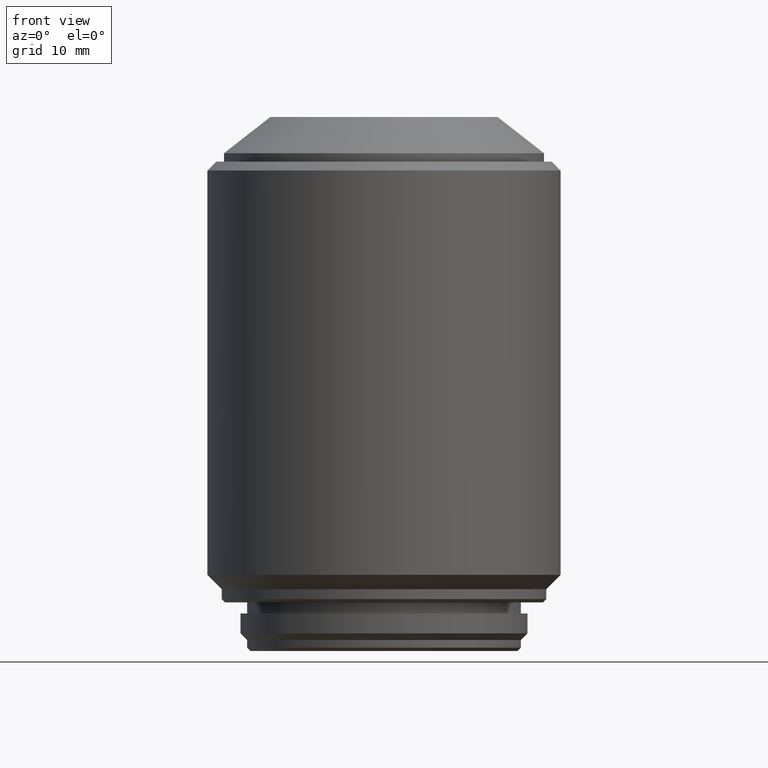
[diagram: clean part render]
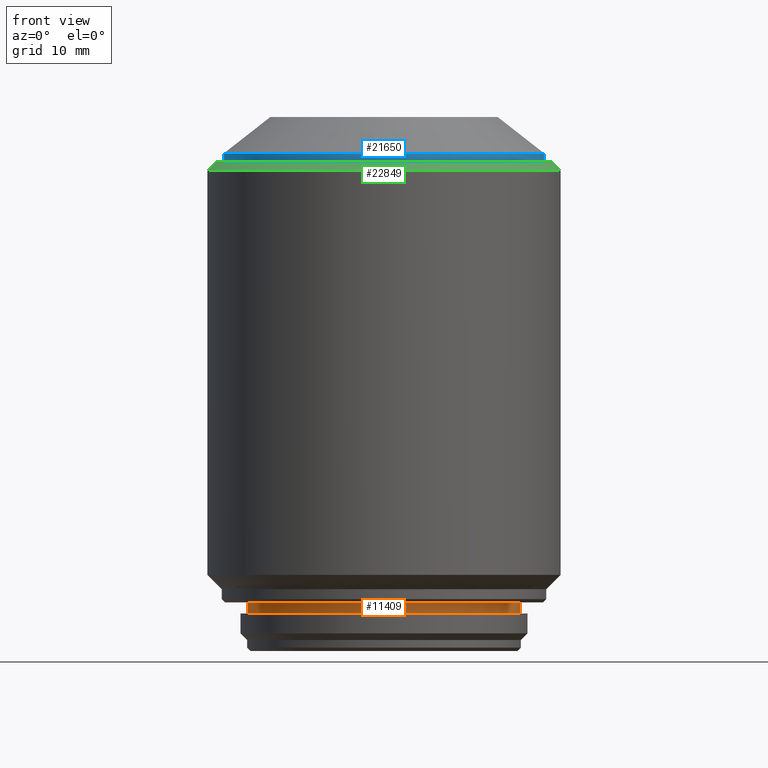
[diagram: same view with three faces highlighted in distinct colors, each labeled with its STEP entity id]
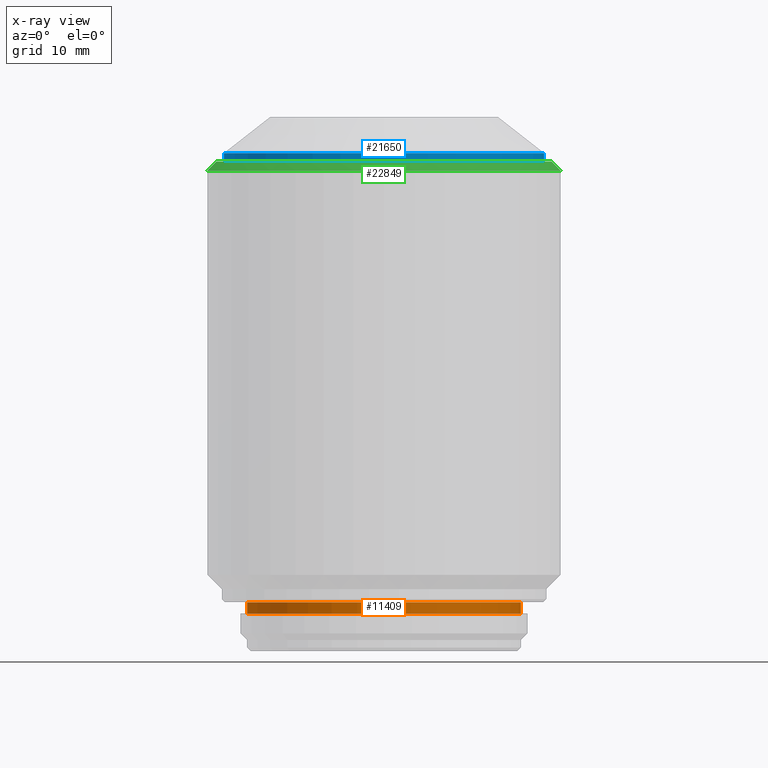
[diagram: x-ray of the same camera — body ghosted, the three highlighted faces saturated]
A machine part, front view with three faces highlighted in distinct colors.
The next image is the same camera in x-ray (body ghosted, the three faces saturated) — at least one of them is partly hidden behind the body in this view.
Their STEP definitions:

[orange] entity #11409 — the highlighted cylindrical surface (partial cylindrical patch) has radius 12.4 mm, axis along (0, 0, 1).
#17 = DIRECTION ( 'NONE',  ( 0.000000000000000000, 0.000000000000000000, -1.000000000000000000 ) ) ;
#1014 = AXIS2_PLACEMENT_3D ( 'NONE', #22533, #22671, #26775 ) ;
#1598 = CARTESIAN_POINT ( 'NONE',  ( -12.40000000000000036, 1.518562030942717967E-15, 3.399999999999999911 ) ) ;
#2845 = EDGE_LOOP ( 'NONE', ( #13541, #24476, #11367, #18495 ) ) ;
#3394 = VERTEX_POINT ( 'NONE', #25352 ) ;
#3842 = CYLINDRICAL_SURFACE ( 'NONE', #5925, 12.40000000000000036 ) ;
#4392 = CARTESIAN_POINT ( 'NONE',  ( 0.000000000000000000, 0.000000000000000000, 4.400000000000000355 ) ) ;
#5070 = CIRCLE ( 'NONE', #1014, 12.40000000000000036 ) ;
#5925 = AXIS2_PLACEMENT_3D ( 'NONE', #23631, #25482, #27456 ) ;
#7354 = CARTESIAN_POINT ( 'NONE',  ( -12.40000000000000036, 1.518562030942717967E-15, 3.399999999999999911 ) ) ;
#8081 = EDGE_CURVE ( 'NONE', #12258, #11461, #14089, .T. ) ;
#8595 = DIRECTION ( 'NONE',  ( -1.000000000000000000, 0.000000000000000000, 0.000000000000000000 ) ) ;
#10724 = VECTOR ( 'NONE', #15456, 1000.000000000000000 ) ;
#11367 = ORIENTED_EDGE ( 'NONE', *, *, #17433, .T. ) ;
#11409 = ADVANCED_FACE ( 'NONE', ( #12394 ), #3842, .T. ) ;
#11461 = VERTEX_POINT ( 'NONE', #25758 ) ;
#11547 = VECTOR ( 'NONE', #14373, 1000.000000000000000 ) ;
#12207 = CIRCLE ( 'NONE', #27026, 12.40000000000000036 ) ;
#12258 = VERTEX_POINT ( 'NONE', #7354 ) ;
#12394 = FACE_OUTER_BOUND ( 'NONE', #2845, .T. ) ;
#13207 = EDGE_CURVE ( 'NONE', #3394, #11461, #12207, .T. ) ;
#13541 = ORIENTED_EDGE ( 'NONE', *, *, #8081, .F. ) ;
#14089 = LINE ( 'NONE', #1598, #11547 ) ;
#14373 = DIRECTION ( 'NONE',  ( 0.000000000000000000, 0.000000000000000000, 1.000000000000000000 ) ) ;
#15456 = DIRECTION ( 'NONE',  ( 0.000000000000000000, 0.000000000000000000, 1.000000000000000000 ) ) ;
#17022 = LINE ( 'NONE', #21783, #10724 ) ;
#17433 = EDGE_CURVE ( 'NONE', #20374, #3394, #17022, .T. ) ;
#18495 = ORIENTED_EDGE ( 'NONE', *, *, #13207, .T. ) ;
#20244 = CARTESIAN_POINT ( 'NONE',  ( 12.40000000000000036, 0.000000000000000000, 3.399999999999999911 ) ) ;
#20374 = VERTEX_POINT ( 'NONE', #20244 ) ;
#21783 = CARTESIAN_POINT ( 'NONE',  ( 12.40000000000000036, 0.000000000000000000, 3.399999999999999911 ) ) ;
#22533 = CARTESIAN_POINT ( 'NONE',  ( 0.000000000000000000, 0.000000000000000000, 3.399999999999999911 ) ) ;
#22671 = DIRECTION ( 'NONE',  ( 0.000000000000000000, 0.000000000000000000, -1.000000000000000000 ) ) ;
#23631 = CARTESIAN_POINT ( 'NONE',  ( 0.000000000000000000, 0.000000000000000000, 3.399999999999999911 ) ) ;
#24281 = EDGE_CURVE ( 'NONE', #20374, #12258, #5070, .T. ) ;
#24476 = ORIENTED_EDGE ( 'NONE', *, *, #24281, .F. ) ;
#25352 = CARTESIAN_POINT ( 'NONE',  ( 12.40000000000000036, 0.000000000000000000, 4.400000000000000355 ) ) ;
#25482 = DIRECTION ( 'NONE',  ( 0.000000000000000000, 0.000000000000000000, 1.000000000000000000 ) ) ;
#25758 = CARTESIAN_POINT ( 'NONE',  ( -12.40000000000000036, 1.518562030942717967E-15, 4.400000000000000355 ) ) ;
#26775 = DIRECTION ( 'NONE',  ( -1.000000000000000000, 0.000000000000000000, 0.000000000000000000 ) ) ;
#27026 = AXIS2_PLACEMENT_3D ( 'NONE', #4392, #17, #8595 ) ;
#27456 = DIRECTION ( 'NONE',  ( 1.000000000000000000, 0.000000000000000000, 0.000000000000000000 ) ) ;

[blue] entity #21650 — the highlighted cylindrical surface (partial cylindrical patch) has radius 14.5 mm, axis along (0, 0, 1).
#451 = AXIS2_PLACEMENT_3D ( 'NONE', #26756, #887, #1155 ) ;
#887 = DIRECTION ( 'NONE',  ( 0.000000000000000000, 0.000000000000000000, 1.000000000000000000 ) ) ;
#941 = DIRECTION ( 'NONE',  ( 0.000000000000000000, 0.000000000000000000, -1.000000000000000000 ) ) ;
#1155 = DIRECTION ( 'NONE',  ( 1.000000000000000000, 0.000000000000000000, 0.000000000000000000 ) ) ;
#1573 = EDGE_CURVE ( 'NONE', #21441, #2901, #9675, .T. ) ;
#2609 = CARTESIAN_POINT ( 'NONE',  ( 0.000000000000000000, 0.000000000000000000, 44.33299999999999841 ) ) ;
#2901 = VERTEX_POINT ( 'NONE', #5473 ) ;
#4513 = EDGE_CURVE ( 'NONE', #20384, #9724, #4671, .T. ) ;
#4540 = ORIENTED_EDGE ( 'NONE', *, *, #1573, .T. ) ;
#4671 = CIRCLE ( 'NONE', #20348, 14.50000000000000000 ) ;
#4676 = CARTESIAN_POINT ( 'NONE',  ( 14.50000000000000000, 0.000000000000000000, 44.33299999999999841 ) ) ;
#4743 = ORIENTED_EDGE ( 'NONE', *, *, #4513, .T. ) ;
#5473 = CARTESIAN_POINT ( 'NONE',  ( -14.50000000000001066, 0.000000000000000000, 45.09799999999999898 ) ) ;
#6130 = CARTESIAN_POINT ( 'NONE',  ( 14.50000000000001066, 1.775737858763663593E-15, 45.09799999999999898 ) ) ;
#7326 = EDGE_LOOP ( 'NONE', ( #17773, #4743, #9195, #4540 ) ) ;
#9195 = ORIENTED_EDGE ( 'NONE', *, *, #24988, .T. ) ;
#9418 = LINE ( 'NONE', #17985, #16956 ) ;
#9480 = LINE ( 'NONE', #19888, #21669 ) ;
#9675 = CIRCLE ( 'NONE', #17306, 14.50000000000000000 ) ;
#9724 = VERTEX_POINT ( 'NONE', #4676 ) ;
#9869 = FACE_OUTER_BOUND ( 'NONE', #7326, .T. ) ;
#9935 = EDGE_CURVE ( 'NONE', #20384, #2901, #9418, .T. ) ;
#11447 = DIRECTION ( 'NONE',  ( 0.000000000000000000, 0.000000000000000000, 1.000000000000000000 ) ) ;
#13511 = CARTESIAN_POINT ( 'NONE',  ( -14.50000000000000000, 1.775737858763662015E-15, 44.33299999999999841 ) ) ;
#13592 = DIRECTION ( 'NONE',  ( 1.000000000000000000, 0.000000000000000000, 0.000000000000000000 ) ) ;
#14079 = CYLINDRICAL_SURFACE ( 'NONE', #451, 14.50000000000000000 ) ;
#16956 = VECTOR ( 'NONE', #24459, 1000.000000000000000 ) ;
#17306 = AXIS2_PLACEMENT_3D ( 'NONE', #24139, #941, #13592 ) ;
#17773 = ORIENTED_EDGE ( 'NONE', *, *, #9935, .F. ) ;
#17985 = CARTESIAN_POINT ( 'NONE',  ( -14.50000000000000000, 1.775737858763662015E-15, 44.33299999999999841 ) ) ;
#19888 = CARTESIAN_POINT ( 'NONE',  ( 14.50000000000000000, 0.000000000000000000, 44.33299999999999841 ) ) ;
#20348 = AXIS2_PLACEMENT_3D ( 'NONE', #2609, #11447, #24237 ) ;
#20384 = VERTEX_POINT ( 'NONE', #13511 ) ;
#21441 = VERTEX_POINT ( 'NONE', #6130 ) ;
#21650 = ADVANCED_FACE ( 'NONE', ( #9869 ), #14079, .T. ) ;
#21669 = VECTOR ( 'NONE', #21863, 1000.000000000000000 ) ;
#21863 = DIRECTION ( 'NONE',  ( 0.000000000000000000, 0.000000000000000000, 1.000000000000000000 ) ) ;
#24139 = CARTESIAN_POINT ( 'NONE',  ( 0.000000000000000000, 0.000000000000000000, 45.09799999999999898 ) ) ;
#24237 = DIRECTION ( 'NONE',  ( 1.000000000000000000, 0.000000000000000000, 0.000000000000000000 ) ) ;
#24459 = DIRECTION ( 'NONE',  ( 0.000000000000000000, 0.000000000000000000, 1.000000000000000000 ) ) ;
#24988 = EDGE_CURVE ( 'NONE', #9724, #21441, #9480, .T. ) ;
#26756 = CARTESIAN_POINT ( 'NONE',  ( 0.000000000000000000, 0.000000000000000000, 44.33299999999999841 ) ) ;

[green] entity #22849 — the highlighted conical surface has half-angle 45 deg.
#817 = EDGE_LOOP ( 'NONE', ( #11087, #26241, #18003, #15336 ) ) ;
#2293 = VERTEX_POINT ( 'NONE', #12176 ) ;
#2652 = DIRECTION ( 'NONE',  ( 0.000000000000000000, 0.000000000000000000, 1.000000000000000000 ) ) ;
#4497 = AXIS2_PLACEMENT_3D ( 'NONE', #6626, #25616, #15183 ) ;
#5108 = CARTESIAN_POINT ( 'NONE',  ( -15.99999999999998579, 0.000000000000000000, 43.53300000000000125 ) ) ;
#5195 = EDGE_CURVE ( 'NONE', #19656, #13818, #11776, .T. ) ;
#6351 = LINE ( 'NONE', #8459, #16083 ) ;
#6626 = CARTESIAN_POINT ( 'NONE',  ( 0.000000000000000000, 0.000000000000000000, 44.33299999999999841 ) ) ;
#7712 = VECTOR ( 'NONE', #19884, 999.9999999999998863 ) ;
#8459 = CARTESIAN_POINT ( 'NONE',  ( 15.19999999999999929, 1.861463134703977092E-15, 44.33299999999999841 ) ) ;
#9410 = CONICAL_SURFACE ( 'NONE', #4497, 15.19999999999999929, 0.7853981633974419507 ) ;
#11014 = VERTEX_POINT ( 'NONE', #17379 ) ;
#11087 = ORIENTED_EDGE ( 'NONE', *, *, #17396, .F. ) ;
#11776 = CIRCLE ( 'NONE', #26602, 16.00000000000000000 ) ;
#12176 = CARTESIAN_POINT ( 'NONE',  ( -15.19999999999999929, 0.000000000000000000, 44.33299999999999841 ) ) ;
#12979 = DIRECTION ( 'NONE',  ( 1.000000000000000000, 0.000000000000000000, 0.000000000000000000 ) ) ;
#13111 = CARTESIAN_POINT ( 'NONE',  ( 0.000000000000000000, 0.000000000000000000, 43.53300000000000125 ) ) ;
#13427 = EDGE_CURVE ( 'NONE', #2293, #13818, #19231, .T. ) ;
#13815 = CARTESIAN_POINT ( 'NONE',  ( 15.99999999999998579, 1.959434878635763554E-15, 43.53300000000000125 ) ) ;
#13818 = VERTEX_POINT ( 'NONE', #5108 ) ;
#14283 = EDGE_CURVE ( 'NONE', #2293, #11014, #23543, .T. ) ;
#14953 = DIRECTION ( 'NONE',  ( 0.000000000000000000, 0.000000000000000000, -1.000000000000000000 ) ) ;
#15183 = DIRECTION ( 'NONE',  ( -1.000000000000000000, 0.000000000000000000, 0.000000000000000000 ) ) ;
#15316 = DIRECTION ( 'NONE',  ( 0.7071067811865431318, 8.659560562354878624E-17, -0.7071067811865520136 ) ) ;
#15336 = ORIENTED_EDGE ( 'NONE', *, *, #5195, .F. ) ;
#16083 = VECTOR ( 'NONE', #15316, 999.9999999999998863 ) ;
#17379 = CARTESIAN_POINT ( 'NONE',  ( 15.19999999999999929, 1.910449006669870126E-15, 44.33299999999999841 ) ) ;
#17396 = EDGE_CURVE ( 'NONE', #11014, #19656, #6351, .T. ) ;
#18003 = ORIENTED_EDGE ( 'NONE', *, *, #13427, .T. ) ;
#18125 = AXIS2_PLACEMENT_3D ( 'NONE', #26127, #2652, #22437 ) ;
#19231 = LINE ( 'NONE', #23175, #7712 ) ;
#19656 = VERTEX_POINT ( 'NONE', #13815 ) ;
#19884 = DIRECTION ( 'NONE',  ( -0.7071067811865431318, 0.000000000000000000, -0.7071067811865520136 ) ) ;
#22437 = DIRECTION ( 'NONE',  ( 1.000000000000000000, 0.000000000000000000, 0.000000000000000000 ) ) ;
#22849 = ADVANCED_FACE ( 'NONE', ( #25888 ), #9410, .T. ) ;
#23175 = CARTESIAN_POINT ( 'NONE',  ( -15.19999999999999929, 0.000000000000000000, 44.33299999999999841 ) ) ;
#23543 = CIRCLE ( 'NONE', #18125, 15.19999999999999929 ) ;
#25616 = DIRECTION ( 'NONE',  ( 0.000000000000000000, 0.000000000000000000, -1.000000000000000000 ) ) ;
#25888 = FACE_OUTER_BOUND ( 'NONE', #817, .T. ) ;
#26127 = CARTESIAN_POINT ( 'NONE',  ( 0.000000000000000000, 0.000000000000000000, 44.33299999999999841 ) ) ;
#26241 = ORIENTED_EDGE ( 'NONE', *, *, #14283, .F. ) ;
#26602 = AXIS2_PLACEMENT_3D ( 'NONE', #13111, #14953, #12979 ) ;